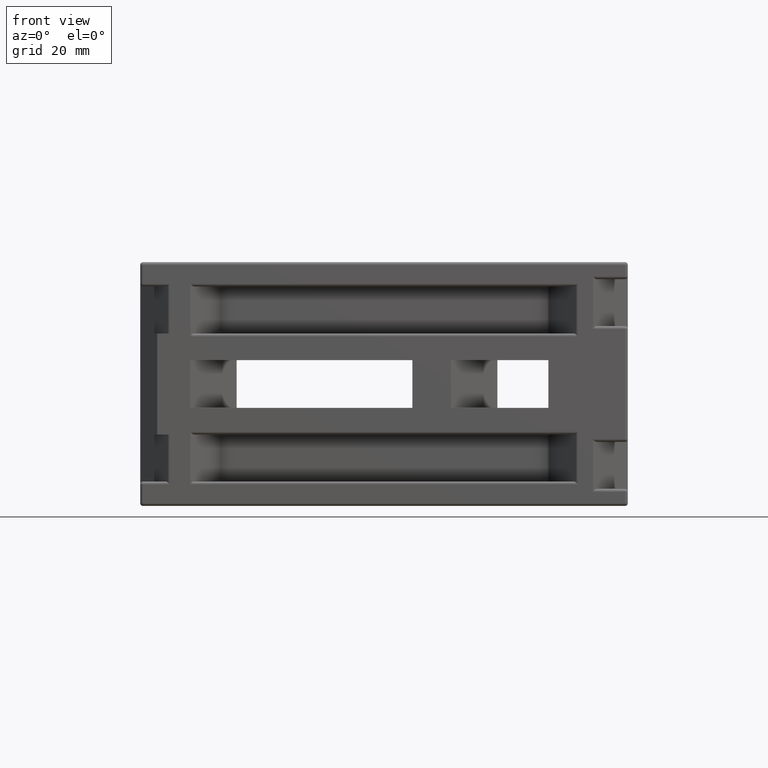
[diagram: clean part render]
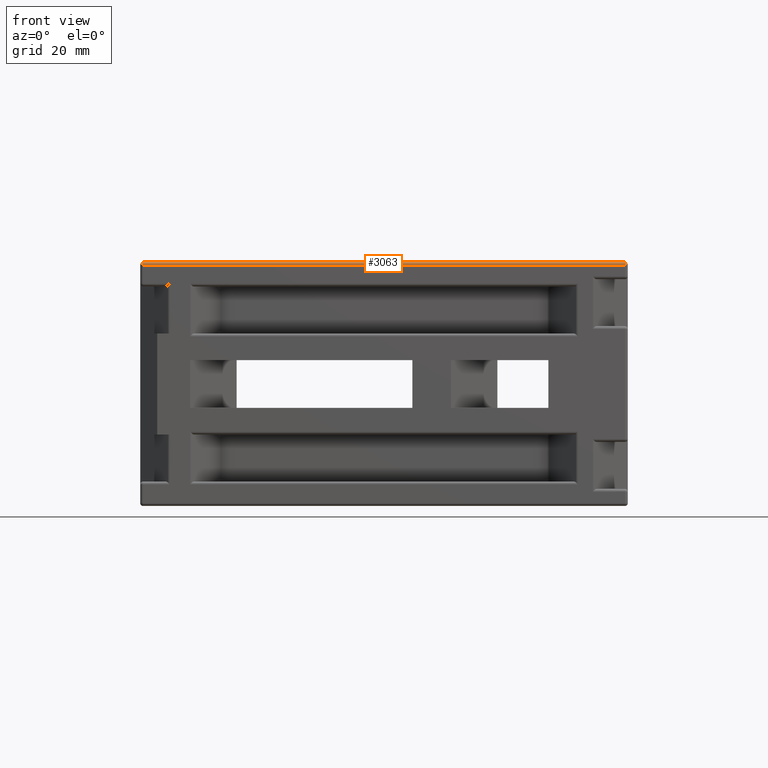
[diagram: same view with one face highlighted and labeled with its STEP entity id]
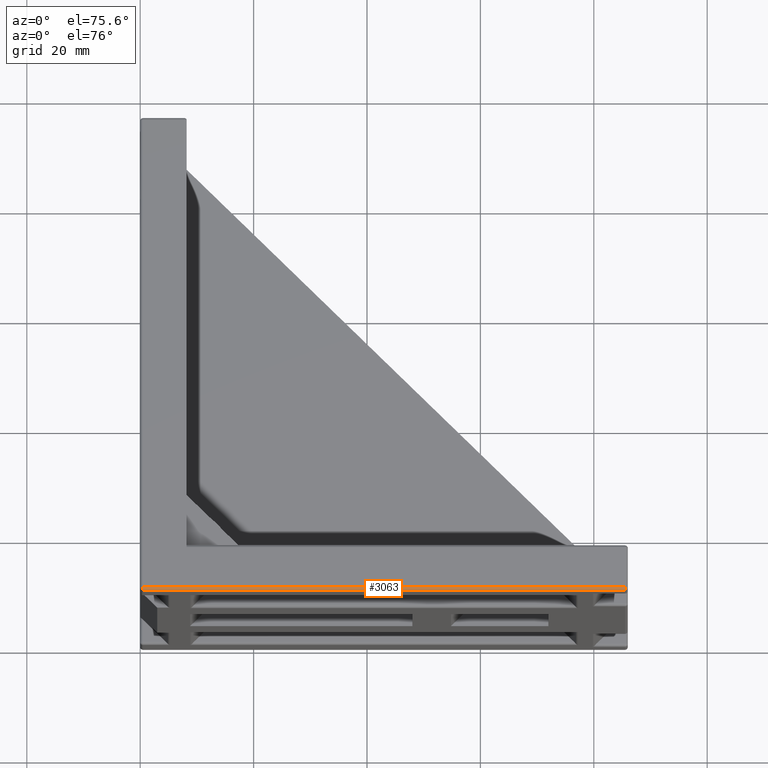
[diagram: same view with one face highlighted and labeled with its STEP entity id]
A machine part, front view. The second image highlights one B-rep face of the part: STEP entity #3063.
A second angle (auxiliary view) of the same face is appended — the face is thin or edge-on in the first view.
In plain terms, the highlighted cylindrical surface (edge-blend (fillet) strip) has radius 0.5 mm, axis along (1, 0, 0).
Its self-contained STEP definition (entity closure, byte-faithful):
#319=FACE_OUTER_BOUND('',#508,.T.);
#508=EDGE_LOOP('',(#2558,#2559,#2560,#2561));
#696=LINE('',#4832,#979);
#788=LINE('',#5212,#1071);
#979=VECTOR('',#3834,10.);
#1071=VECTOR('',#4266,10.);
#1218=CIRCLE('',#3395,0.499999999999998);
#1222=CIRCLE('',#3408,0.5);
#1356=VERTEX_POINT('',#4829);
#1357=VERTEX_POINT('',#4831);
#1461=VERTEX_POINT('',#5159);
#1469=VERTEX_POINT('',#5185);
#1686=EDGE_CURVE('',#1357,#1356,#696,.T.);
#1855=EDGE_CURVE('',#1461,#1357,#1218,.F.);
#1866=EDGE_CURVE('',#1356,#1469,#1222,.F.);
#1880=EDGE_CURVE('',#1469,#1461,#788,.T.);
#2558=ORIENTED_EDGE('',*,*,#1866,.T.);
#2559=ORIENTED_EDGE('',*,*,#1880,.T.);
#2560=ORIENTED_EDGE('',*,*,#1855,.T.);
#2561=ORIENTED_EDGE('',*,*,#1686,.T.);
#2929=CYLINDRICAL_SURFACE('',#3420,0.5);
#3063=ADVANCED_FACE('',(#319),#2929,.T.);
#3395=AXIS2_PLACEMENT_3D('',#5162,#4204,#4205);
#3408=AXIS2_PLACEMENT_3D('',#5186,#4233,#4234);
#3420=AXIS2_PLACEMENT_3D('',#5211,#4264,#4265);
#3834=DIRECTION('',(1.,5.16382802151236E-17,0.));
#4204=DIRECTION('center_axis',(-1.,0.,0.));
#4205=DIRECTION('ref_axis',(0.,0.,1.));
#4233=DIRECTION('center_axis',(1.,0.,0.));
#4234=DIRECTION('ref_axis',(0.,-1.,0.));
#4264=DIRECTION('center_axis',(1.,5.16382802151236E-17,0.));
#4265=DIRECTION('ref_axis',(0.,-0.707106781186548,0.707106781186547));
#4266=DIRECTION('',(-1.,-5.16382802151236E-17,0.));
#4829=CARTESIAN_POINT('',(85.5,4.44089209850063E-15,21.));
#4831=CARTESIAN_POINT('',(0.5,2.62687423138906E-17,21.));
#4832=CARTESIAN_POINT('',(16.1162932381858,8.32667268468867E-16,21.));
#5159=CARTESIAN_POINT('',(0.5,0.499999999999998,21.5));
#5162=CARTESIAN_POINT('Origin',(0.5,0.5,21.));
#5185=CARTESIAN_POINT('',(85.5,0.500000000000004,21.5));
#5186=CARTESIAN_POINT('Origin',(85.5,0.500000000000004,21.));
#5211=CARTESIAN_POINT('Origin',(16.1162932381858,0.5,21.));
#5212=CARTESIAN_POINT('',(16.1162932381858,0.5,21.5));